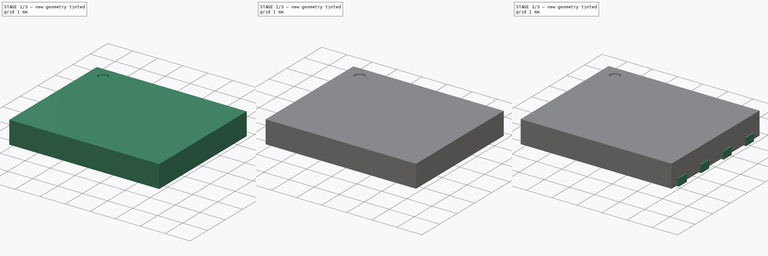
[diagram: build sequence overview — one tinted view per stage of 3, left to right]
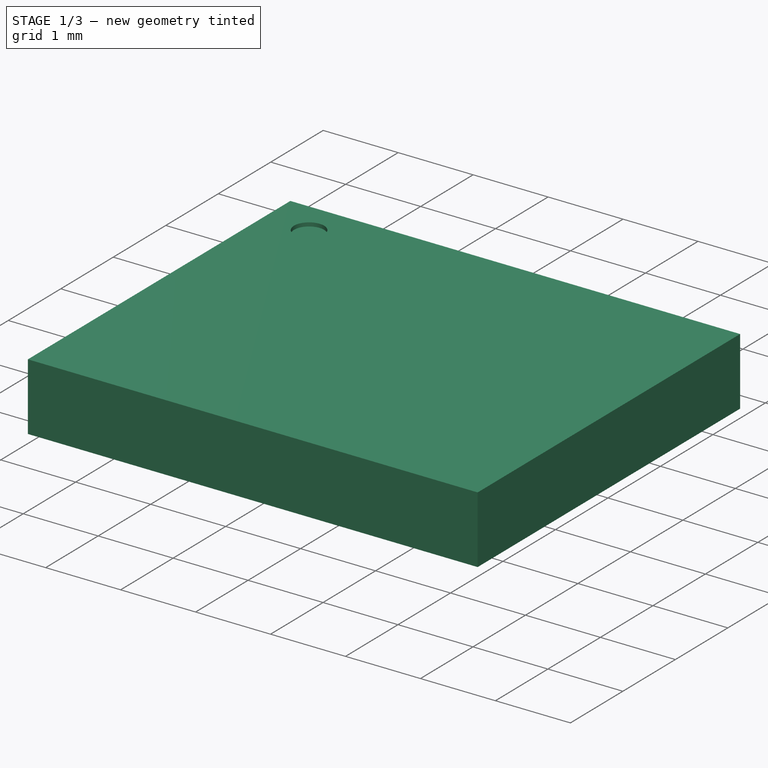
[diagram: stage 1 of 3 — iso view after this stage's code; geometry added in this stage tinted green]
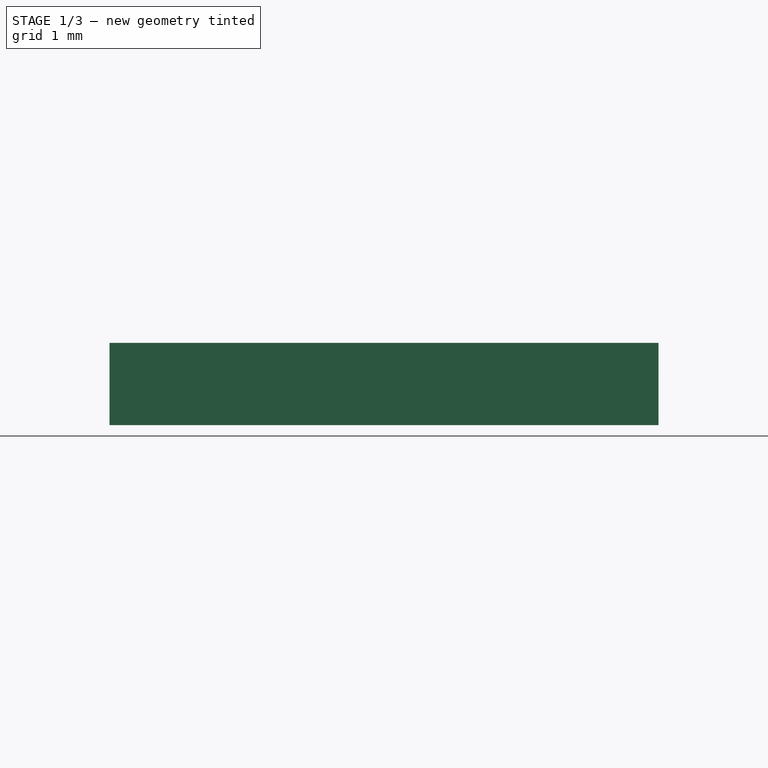
[diagram: stage 1 of 3 — front view after this stage's code; geometry added in this stage tinted green]
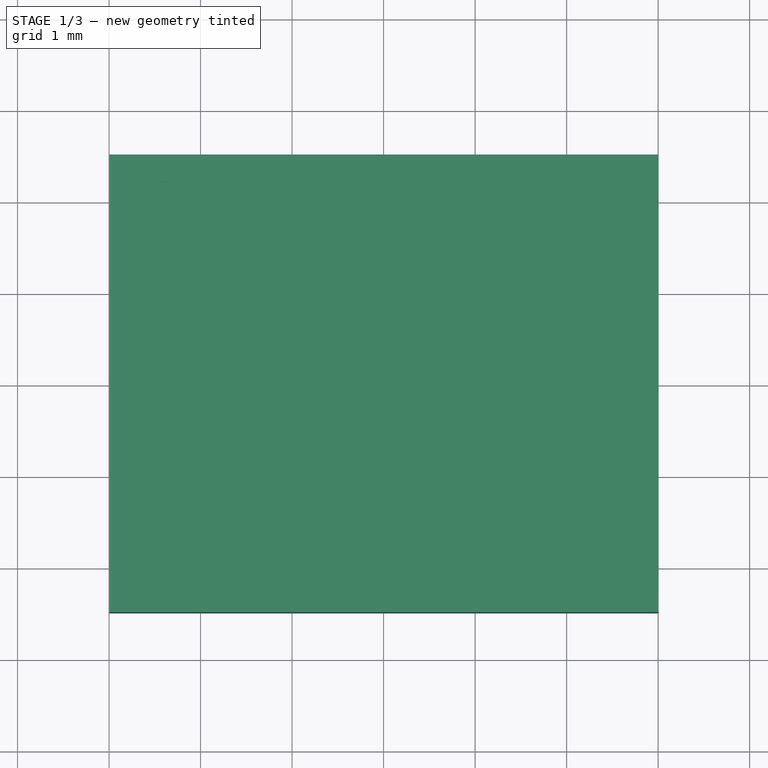
[diagram: stage 1 of 3 — top view after this stage's code; geometry added in this stage tinted green]
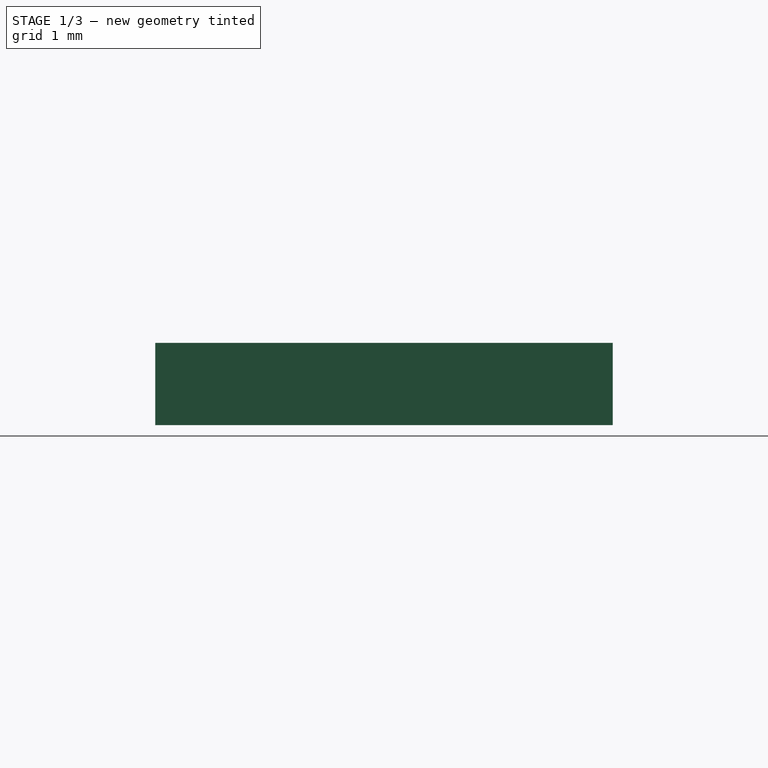
[diagram: stage 1 of 3 — right view after this stage's code; geometry added in this stage tinted green]
FCSTD DOCUMENT  (FreeCAD 0.16R6703 (Git))
Label: DFN-8-6x5mm
License: All rights reserved
LicenseURL: http://en.wikipedia.org/wiki/All_rights_reserved
objects: Sketcher::SketchObject×4, PartDesign::Pad×3, Part::FeaturePython×3, PartDesign::Pocket×1, Part::MultiFuse×1, App::DocumentObjectGroup×1
note: 16 computed .brp shape members not serialized (recipe doc carries the construction recipe); baked Part::Feature solids carry a one-line shape summary decoded from their .brp

FEATURE [Sketcher::SketchObject] Sketch  label="body-sketch"
  Placement = pos=(0.00454014,0.0117579,0.0465888) rot=(0,0,1;0rad)
  sketch-geometry (4):
    g0: LineSegment StartX=-3 StartY=2.5 StartZ=0 EndX=3 EndY=2.5 EndZ=0
    g1: LineSegment StartX=3 StartY=2.5 StartZ=0 EndX=3 EndY=-2.5 EndZ=0
    g2: LineSegment StartX=3 StartY=-2.5 StartZ=0 EndX=-3 EndY=-2.5 EndZ=0
    g3: LineSegment StartX=-3 StartY=-2.5 StartZ=0 EndX=-3 EndY=2.5 EndZ=0
  constraints (11):
    c: Coincident(g0,g1)
    c: Coincident(g1,g2)
    c: Coincident(g2,g3)
    c: Coincident(g3,g0)
    c: Horizontal(g0)
    c: Horizontal(g2)
    c: Vertical(g1)
    c: Vertical(g3)
    c: Symmetric(g0,g1,g-1)
    c: DistanceX(g0,g0) = 6
    c: DistanceY(g1,g1) = 5
FEATURE [PartDesign::Pad] Pad  label="body-src"
  Length = 0.9
  Length2 = 100
  Placement = pos=(0.00454014,0.0117579,0.0465888) rot=(0,0,1;0rad)
  Sketch = -> Sketch
  Type = 0
FEATURE [Sketcher::SketchObject] Sketch001
  Placement = pos=(0.00454014,0.0117579,0.946589) rot=(0,0,1;0rad)
  Support = -> Pad [Face6]
  sketch-geometry (1):
    g0: Circle CenterX=-2.4 CenterY=2 CenterZ=0 NormalX=0 NormalY=0 NormalZ=1 Radius=0.2
  constraints (3):
    c: Radius(g0) = 0.2
    c: DistanceX(g0,g-1) = 2.4
    c: DistanceY(g-1,g0) = 2
FEATURE [PartDesign::Pocket] Pocket  label="body-mark"
  Length = 0.05
  Placement = pos=(0.00454014,0.0117579,0.0465888) rot=(0,0,1;0rad)
  Sketch = -> Sketch001
  Type = 0
FEATURE [Part::FeaturePython] Clone  label="body"  # Draft clone (typed FeaturePython)
  Objects = -> [Pocket]
  Placement = pos=(0.00454014,0.0117579,0.0465888) rot=(0,0,1;0rad)
  Scale = (1,1,1)
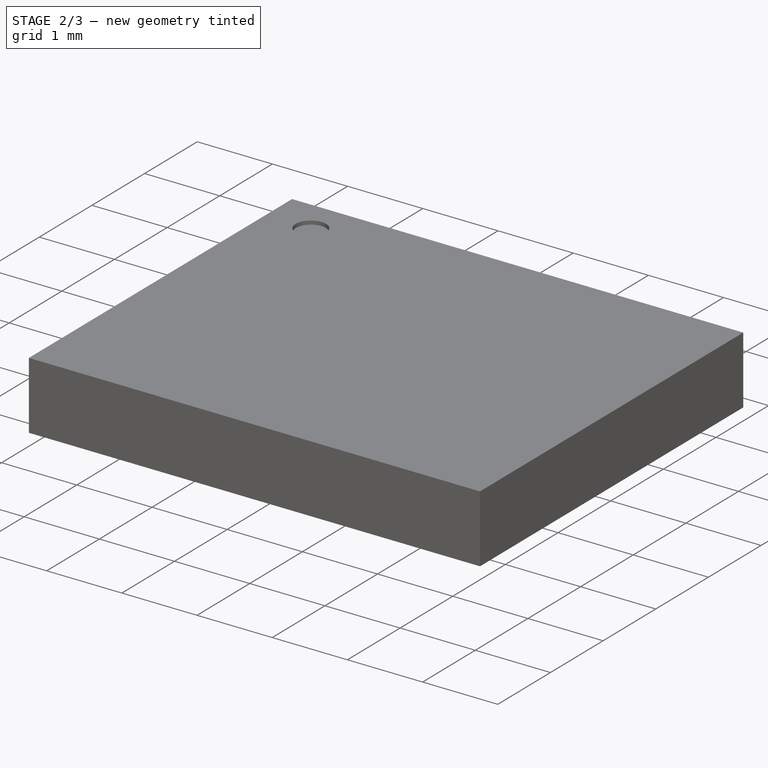
[diagram: stage 2 of 3 — iso view after this stage's code; geometry added in this stage tinted green]
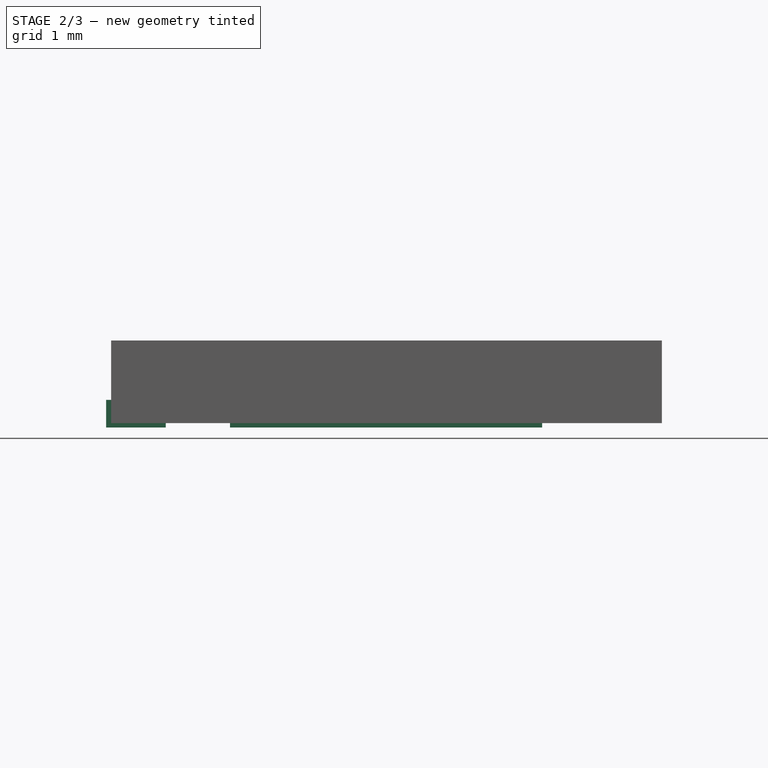
[diagram: stage 2 of 3 — front view after this stage's code; geometry added in this stage tinted green]
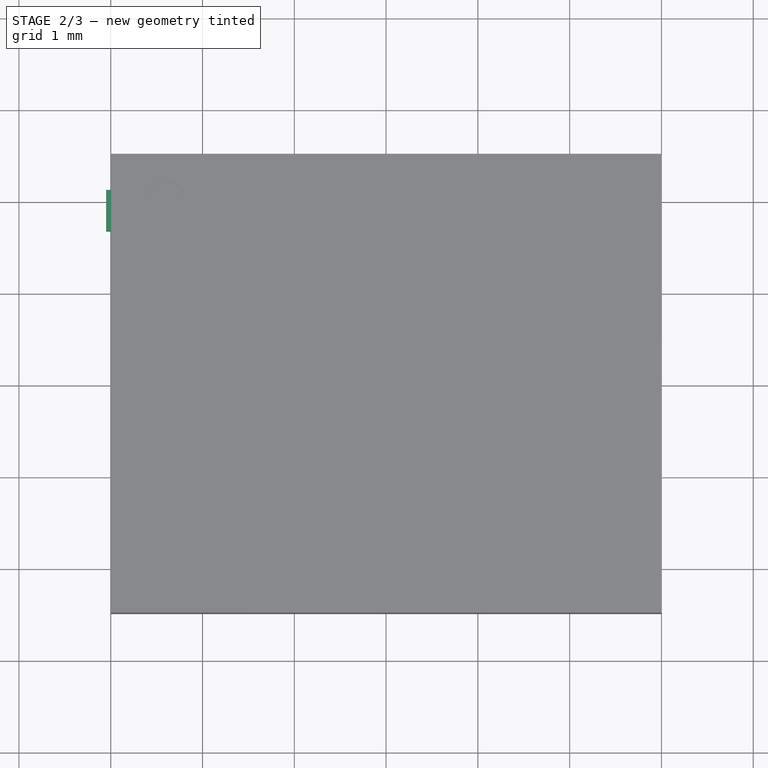
[diagram: stage 2 of 3 — top view after this stage's code; geometry added in this stage tinted green]
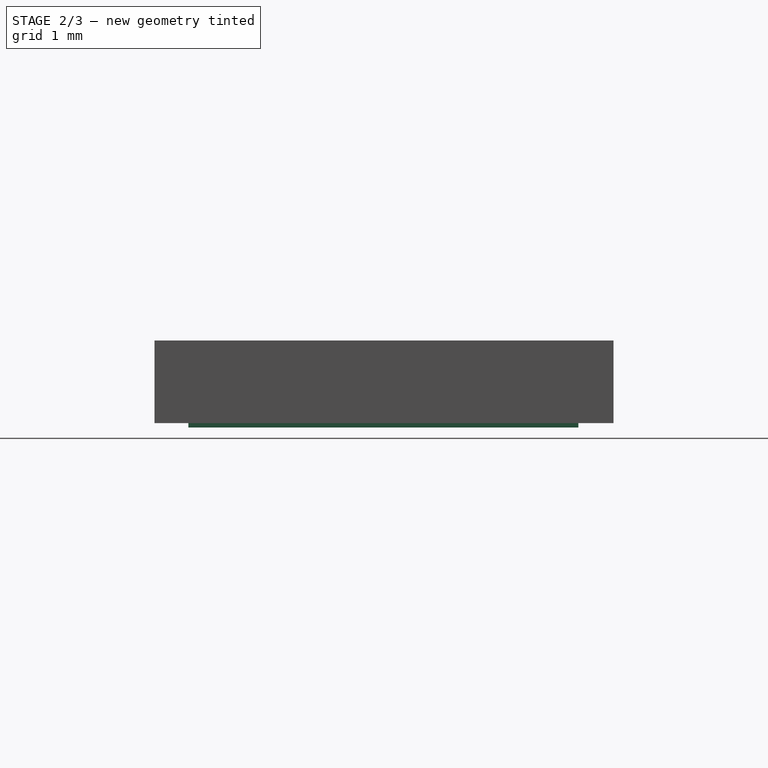
[diagram: stage 2 of 3 — right view after this stage's code; geometry added in this stage tinted green]
FEATURE [Sketcher::SketchObject] Sketch002  label="pad1-sketch"
  sketch-geometry (4):
    g0: LineSegment StartX=-3.05 StartY=2.13 StartZ=0 EndX=-2.4 EndY=2.13 EndZ=0
    g1: LineSegment StartX=-2.4 StartY=2.13 StartZ=0 EndX=-2.4 EndY=1.68 EndZ=0
    g2: LineSegment StartX=-2.4 StartY=1.68 StartZ=0 EndX=-3.05 EndY=1.68 EndZ=0
    g3: LineSegment StartX=-3.05 StartY=2.13 StartZ=0 EndX=-3.05 EndY=1.68 EndZ=0
  constraints (12):
    c: Coincident(g0,g1)
    c: Coincident(g1,g2)
    c: Horizontal(g0)
    c: Horizontal(g2)
    c: Vertical(g1)
    c: DistanceX(g0,g0) = 0.65
    c: DistanceY(g1,g1) = 0.45
    c: DistanceX(g1,g-1) = 2.4
    c: Coincident(g3,g0)
    c: Coincident(g3,g2)
    c: Vertical(g3)
    c: DistanceY(g-1,g1) = 1.68
FEATURE [PartDesign::Pad] Pad001  label="pad-1-src"
  Length = 0.3
  Length2 = 100
  Sketch = -> Sketch002
  Type = 0
FEATURE [Sketcher::SketchObject] Sketch003
  sketch-geometry (5):
    g0: LineSegment StartX=-1.7 StartY=1.75 StartZ=0 EndX=-1.7 EndY=-2.12 EndZ=0
    g1: LineSegment StartX=-1.7 StartY=-2.12 StartZ=0 EndX=1.7 EndY=-2.12 EndZ=0
    g2: LineSegment StartX=1.7 StartY=-2.12 StartZ=0 EndX=1.7 EndY=2.12 EndZ=0
    g3: LineSegment StartX=1.7 StartY=2.12 StartZ=0 EndX=-1.33 EndY=2.12 EndZ=0
    g4: LineSegment StartX=-1.33 StartY=2.12 StartZ=0 EndX=-1.7 EndY=1.75 EndZ=0
  constraints (14):
    c: Vertical(g0)
    c: Coincident(g0,g1)
    c: Horizontal(g1)
    c: Coincident(g1,g2)
    c: Vertical(g2)
    c: Coincident(g2,g3)
    c: Horizontal(g3)
    c: Coincident(g3,g4)
    c: Coincident(g4,g0)
    c: Symmetric(g0,g2,g-1)
    c: Angle(g-1,g4) = 0.785398
    c: DistanceX(g1,g1) = 3.4
    c: DistanceY(g2,g2) = 4.24
    c: DistanceX(g3,g-1) = 1.33
FEATURE [PartDesign::Pad] Pad002  label="pad-central"
  Length = 0.2
  Length2 = 100
  Sketch = -> Sketch003
  Type = 0
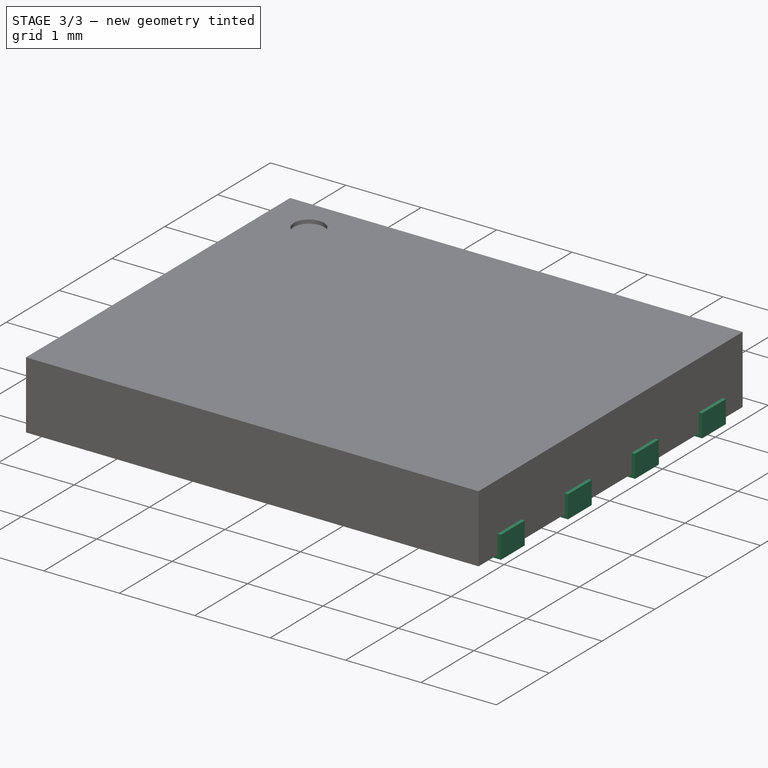
[diagram: stage 3 of 3 — iso view after this stage's code; geometry added in this stage tinted green]
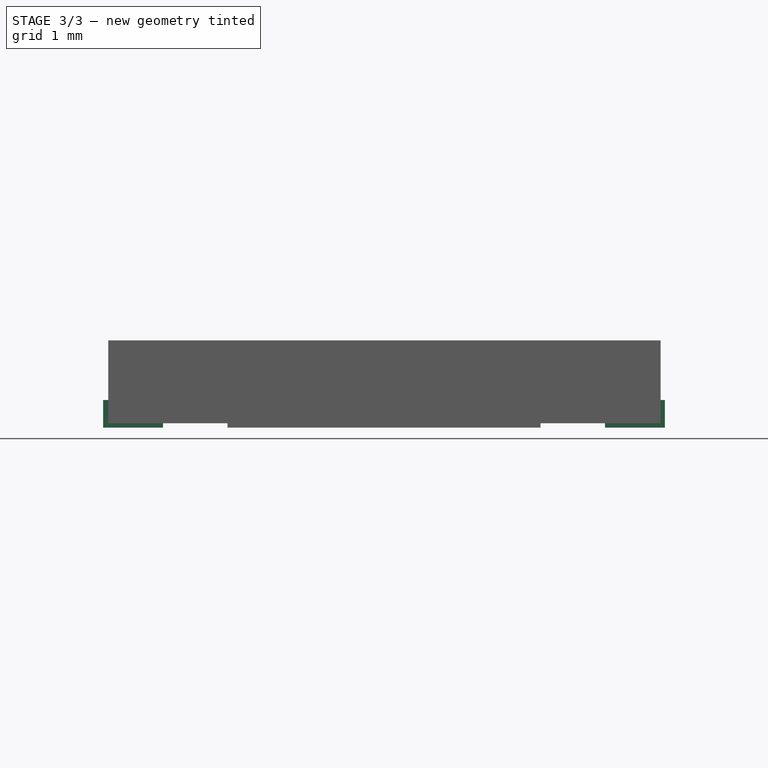
[diagram: stage 3 of 3 — front view after this stage's code; geometry added in this stage tinted green]
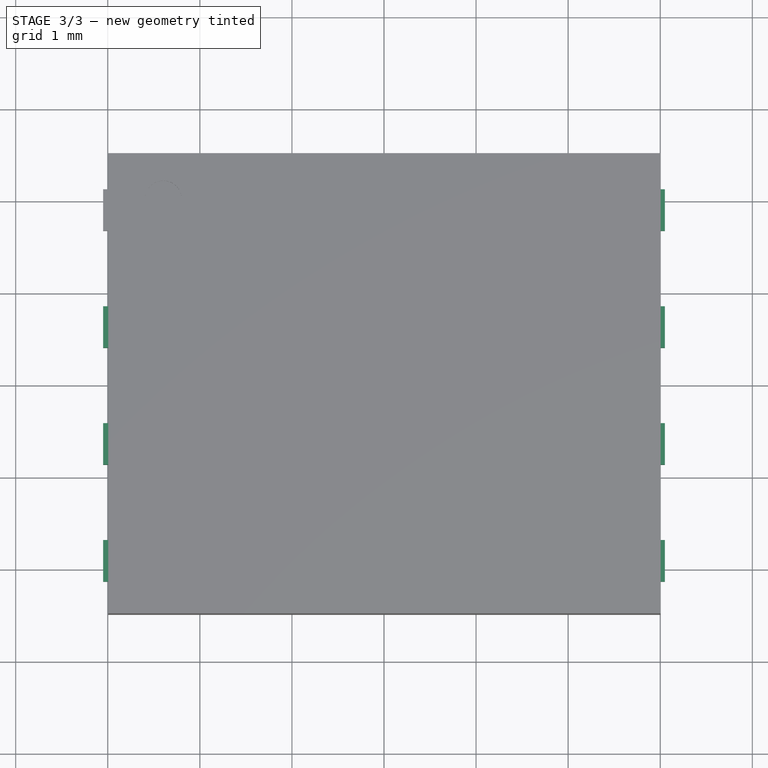
[diagram: stage 3 of 3 — top view after this stage's code; geometry added in this stage tinted green]
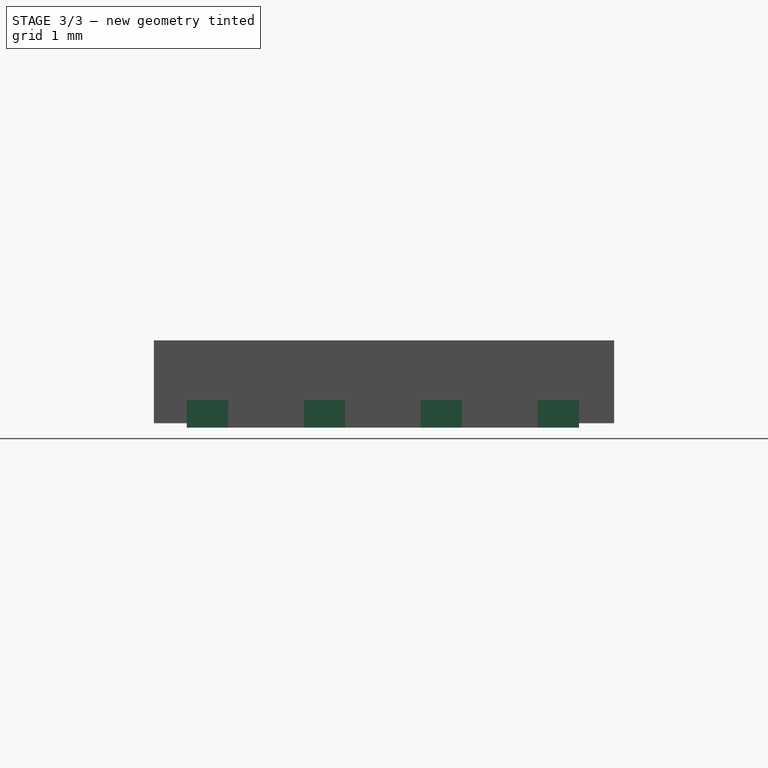
[diagram: stage 3 of 3 — right view after this stage's code; geometry added in this stage tinted green]
FEATURE [Part::FeaturePython] Array  label="pads-side"  # Draft array (typed FeaturePython)
  Angle = 360
  ArrayType = 0
  Axis = (0,0,1)
  Base = -> Pad001
  Center = (0,0,0)
  Fuse = false
  IntervalAxis = (0,0,0)
  IntervalX = (5.45,0,0)
  IntervalY = (0,-1.27,0)
  IntervalZ = (0,0,0)
  NumberPolar = 1
  NumberX = 2
  NumberY = 4
  NumberZ = 1
FEATURE [Part::MultiFuse] Fusion  label="pads-src"
  Shapes = -> [Array,Pad002]
FEATURE [App::DocumentObjectGroup] Group  label="src"
  Group = -> [Pad,Pocket,Pad001,Fusion]
FEATURE [Part::FeaturePython] Clone001  label="pads"  # Draft clone (typed FeaturePython)
  Objects = -> [Fusion]
  Scale = (1,1,1)
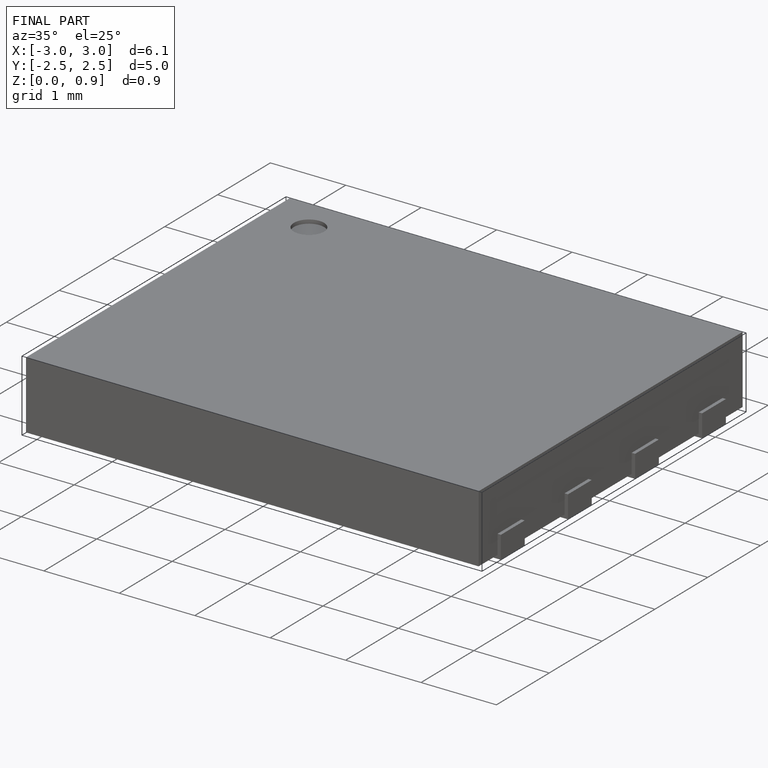
[diagram: finished part — iso view with bounding-box wireframe]
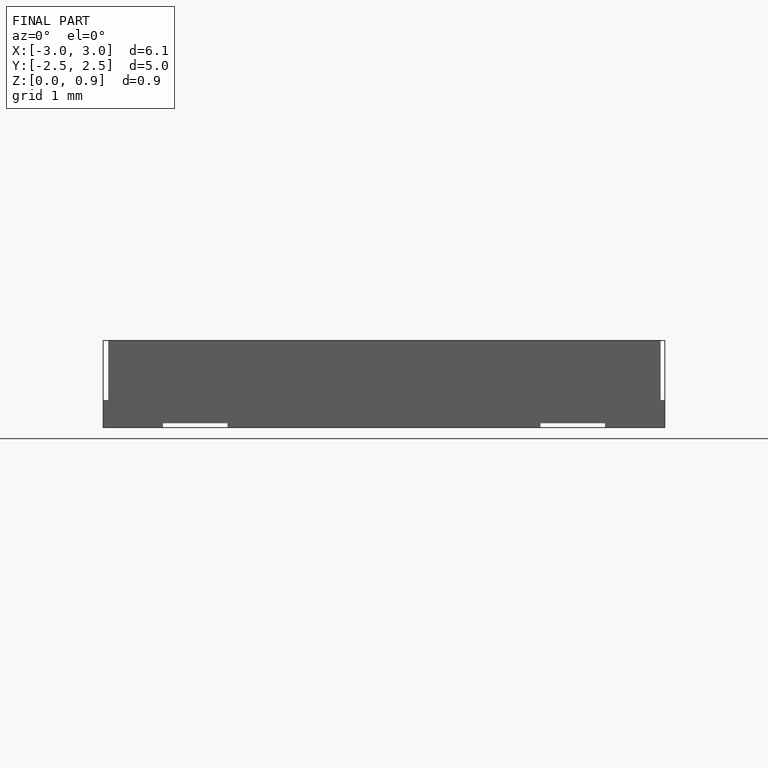
[diagram: finished part — front view with bounding-box wireframe]
